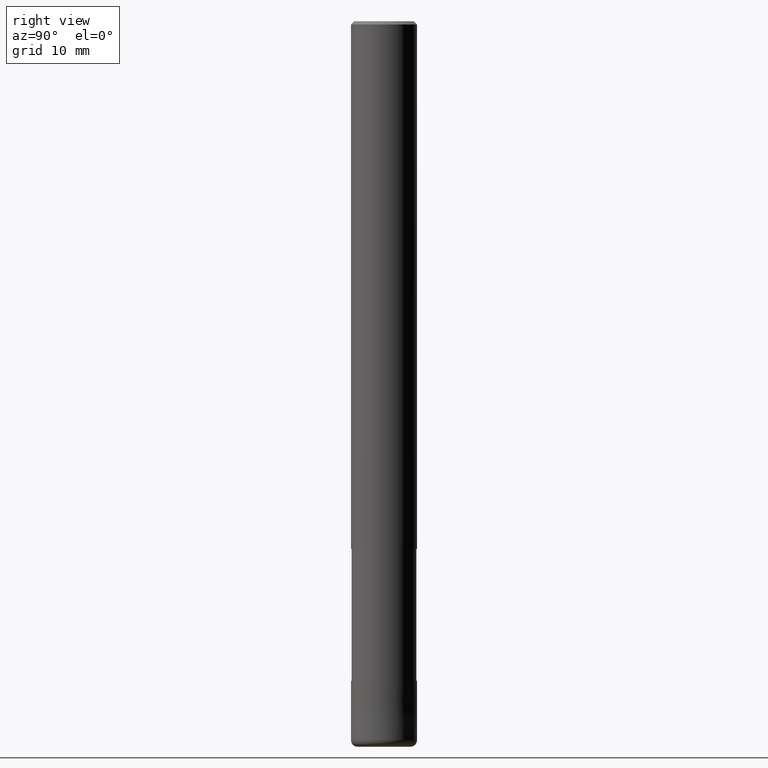
[diagram: clean part render]
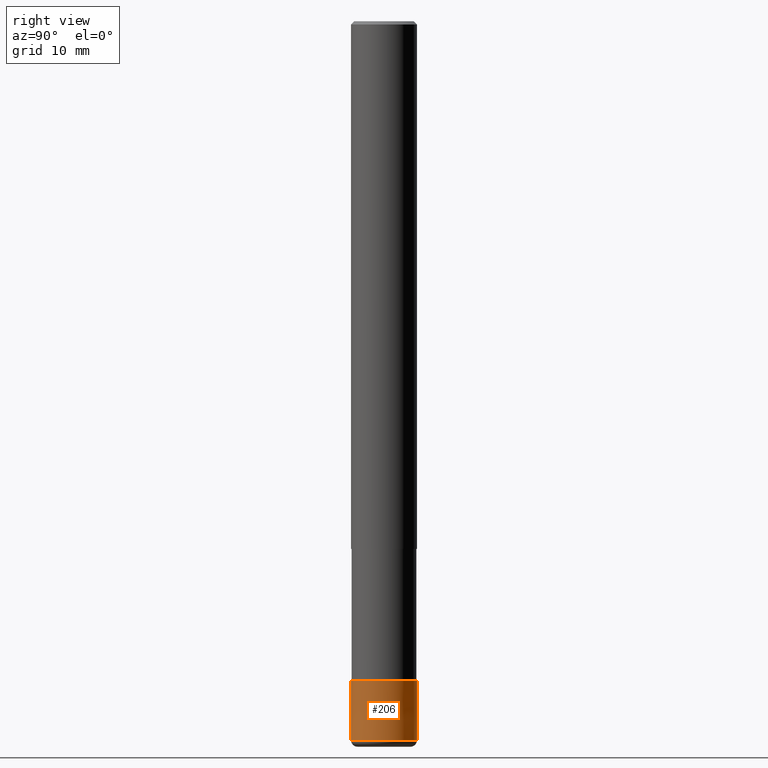
[diagram: same view with one face highlighted and labeled with its STEP entity id]
A machine part, right view. The second image highlights one B-rep face of the part: STEP entity #206.
In plain terms, the highlighted conical surface has half-angle 0.001 deg.
Its self-contained STEP definition (entity closure, byte-faithful):
#104=EDGE_CURVE('',#150,#184,#242,.T.);
#132=EDGE_CURVE('',#184,#190,#274,.T.);
#150=VERTEX_POINT('',#295);
#168=EDGE_CURVE('',#150,#174,#316,.T.);
#174=VERTEX_POINT('',#322);
#184=VERTEX_POINT('',#332);
#188=EDGE_CURVE('',#190,#174,#337,.T.);
#190=VERTEX_POINT('',#339);
#206=ADVANCED_FACE('',(#357),#358,.T.);
#242=LINE('',#390,#391);
#274=CIRCLE('',#430,5.0);
#295=CARTESIAN_POINT('',(0.0,4.9999,-100.0));
#316=CIRCLE('',#480,4.9999);
#322=CARTESIAN_POINT('',(6.1229093084765E-016,-4.9999,-100.0));
#332=CARTESIAN_POINT('',(0.0,5.0,-109.0));
#337=LINE('',#508,#509);
#339=CARTESIAN_POINT('',(6.12303176911189E-016,-5.0,-109.0));
#357=FACE_OUTER_BOUND('',#534,.T.);
#358=CONICAL_SURFACE('',#535,4.99995,1.1111111110628E-005);
#390=CARTESIAN_POINT('',(-6.12297053879419E-016,4.99995,-104.5));
#391=VECTOR('',#553,1.0);
#430=AXIS2_PLACEMENT_3D('',#592,#593,#594);
#480=AXIS2_PLACEMENT_3D('',#649,#650,#651);
#508=CARTESIAN_POINT('',(6.12297053879419E-016,-4.99995,-104.5));
#509=VECTOR('',#673,1.0);
#534=EDGE_LOOP('',(#701,#702,#703,#704));
#535=AXIS2_PLACEMENT_3D('',#705,#706,#707);
#553=DIRECTION('',(-1.36067372638214E-021,1.11111111103993E-005,-0.999999999938272));
#592=CARTESIAN_POINT('',(0.0,0.0,-109.0));
#593=DIRECTION('',(0.0,0.0,-1.0));
#594=DIRECTION('',(0.0,1.0,0.0));
#649=CARTESIAN_POINT('',(0.0,0.0,-100.0));
#650=DIRECTION('',(0.0,0.0,-1.0));
#651=DIRECTION('',(0.0,1.0,0.0));
#673=DIRECTION('',(-1.36067372638214E-021,1.11111111103993E-005,0.999999999938272));
#701=ORIENTED_EDGE('',*,*,#104,.F.);
#702=ORIENTED_EDGE('',*,*,#168,.T.);
#703=ORIENTED_EDGE('',*,*,#188,.F.);
#704=ORIENTED_EDGE('',*,*,#132,.F.);
#705=CARTESIAN_POINT('',(0.0,0.0,-104.5));
#706=DIRECTION('',(0.0,-0.0,-1.0));
#707=DIRECTION('',(0.0,1.0,0.0));